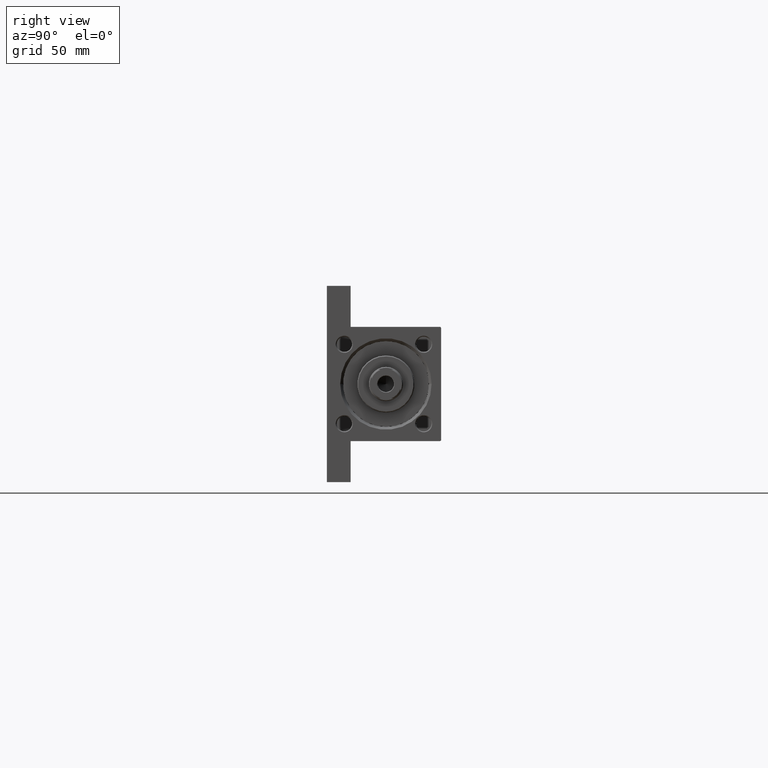
[diagram: clean part render]
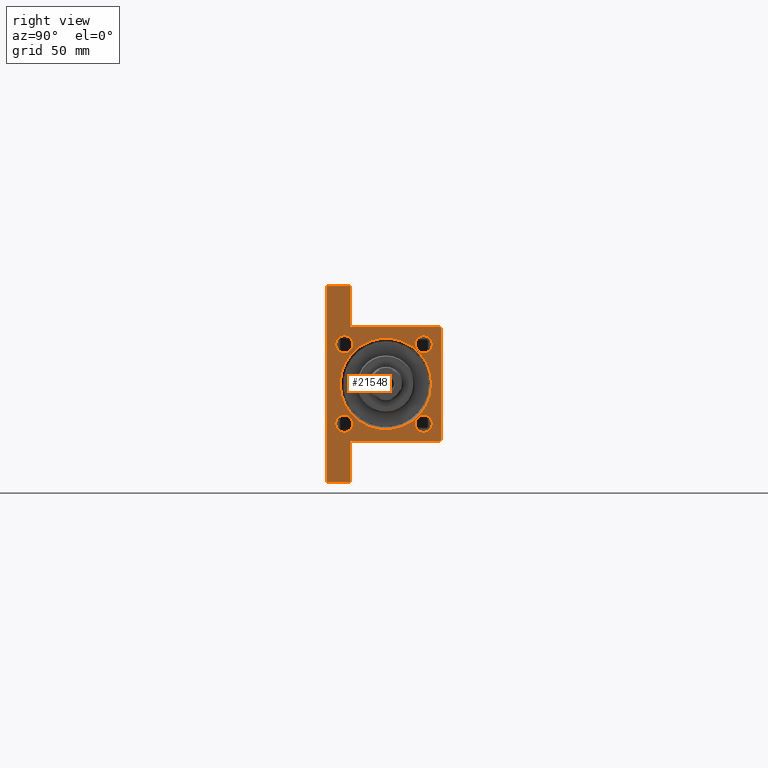
[diagram: same view with one face highlighted and labeled with its STEP entity id]
A machine part, right view. The second image highlights one B-rep face of the part: STEP entity #21548.
In plain terms, the highlighted planar face has unit normal (-1, 0, -0).
Its self-contained STEP definition (entity closure, byte-faithful):
#75 = EDGE_LOOP ( 'NONE', ( #953, #18362 ) ) ;
#223 = EDGE_CURVE ( 'NONE', #21529, #13466, #15725, .T. ) ;
#333 = CIRCLE ( 'NONE', #45209, 23.99999999999999645 ) ;
#454 = CARTESIAN_POINT ( 'NONE',  ( 327.9999999999999432, -51.50000000000002842, -29.99999999999999645 ) ) ;
#515 = FACE_OUTER_BOUND ( 'NONE', #5022, .T. ) ;
#526 = DIRECTION ( 'NONE',  ( 0.000000000000000000, 0.000000000000000000, 1.000000000000000000 ) ) ;
#953 = ORIENTED_EDGE ( 'NONE', *, *, #33337, .T. ) ;
#1099 = AXIS2_PLACEMENT_3D ( 'NONE', #11330, #4176, #3933 ) ;
#1612 = CARTESIAN_POINT ( 'NONE',  ( 327.9999999999999432, -51.50000000000002842, -17.49999999999999645 ) ) ;
#1688 = ORIENTED_EDGE ( 'NONE', *, *, #18664, .T. ) ;
#1730 = EDGE_CURVE ( 'NONE', #23710, #16161, #333, .T. ) ;
#1735 = CARTESIAN_POINT ( 'NONE',  ( 327.9999999999999432, 29.50000000000002487, 30.00000000000000000 ) ) ;
#1999 = VECTOR ( 'NONE', #32997, 1000.000000000000000 ) ;
#2104 = CARTESIAN_POINT ( 'NONE',  ( 327.9999999999999432, -30.00000000000000000, 29.50000000000001776 ) ) ;
#2132 = VERTEX_POINT ( 'NONE', #21603 ) ;
#2498 = VERTEX_POINT ( 'NONE', #1612 ) ;
#2574 = VERTEX_POINT ( 'NONE', #44727 ) ;
#3003 = FACE_BOUND ( 'NONE', #33575, .T. ) ;
#3026 = DIRECTION ( 'NONE',  ( 0.000000000000000000, 0.000000000000000000, 1.000000000000000000 ) ) ;
#3253 = CARTESIAN_POINT ( 'NONE',  ( 327.9999999999999432, -20.85000000000000142, -20.85000000000000142 ) ) ;
#3603 = AXIS2_PLACEMENT_3D ( 'NONE', #14236, #29283, #22608 ) ;
#3933 = DIRECTION ( 'NONE',  ( 0.000000000000000000, 0.000000000000000000, 1.000000000000000000 ) ) ;
#4041 = CARTESIAN_POINT ( 'NONE',  ( 327.9999999999999432, -30.00000000000000000, -17.49999999999998224 ) ) ;
#4074 = CIRCLE ( 'NONE', #33188, 4.500000000000031974 ) ;
#4137 = LINE ( 'NONE', #30509, #15869 ) ;
#4176 = DIRECTION ( 'NONE',  ( -1.000000000000000000, 0.000000000000000000, -0.000000000000000000 ) ) ;
#4737 = LINE ( 'NONE', #38281, #39531 ) ;
#4822 = VECTOR ( 'NONE', #41327, 1000.000000000000000 ) ;
#5022 = EDGE_LOOP ( 'NONE', ( #33754, #25391, #34948, #39122, #43102, #16293, #14489, #31527, #6153, #43975 ) ) ;
#5418 = EDGE_CURVE ( 'NONE', #2574, #12508, #47270, .T. ) ;
#6153 = ORIENTED_EDGE ( 'NONE', *, *, #48739, .F. ) ;
#6832 = VECTOR ( 'NONE', #26269, 1000.000000000000000 ) ;
#7761 = LINE ( 'NONE', #22799, #4822 ) ;
#8220 = EDGE_LOOP ( 'NONE', ( #21623, #31787 ) ) ;
#8811 = DIRECTION ( 'NONE',  ( 0.000000000000000000, -1.000000000000000000, -1.156482317317871478E-16 ) ) ;
#8961 = EDGE_CURVE ( 'NONE', #24069, #2132, #24076, .T. ) ;
#9028 = CARTESIAN_POINT ( 'NONE',  ( 327.9999999999999432, 30.00000000000000000, 29.50000000000000000 ) ) ;
#9249 = DIRECTION ( 'NONE',  ( 0.000000000000000000, 0.000000000000000000, 1.000000000000000000 ) ) ;
#9551 = CIRCLE ( 'NONE', #23674, 4.500000000000031974 ) ;
#9695 = EDGE_CURVE ( 'NONE', #27887, #40385, #4737, .T. ) ;
#10214 = EDGE_CURVE ( 'NONE', #2498, #21919, #4137, .T. ) ;
#10635 = PLANE ( 'NONE',  #31273 ) ;
#10879 = DIRECTION ( 'NONE',  ( -1.000000000000000000, 0.000000000000000000, -0.000000000000000000 ) ) ;
#10912 = ORIENTED_EDGE ( 'NONE', *, *, #8961, .T. ) ;
#11158 = AXIS2_PLACEMENT_3D ( 'NONE', #35556, #23474, #35311 ) ;
#11330 = CARTESIAN_POINT ( 'NONE',  ( 327.9999999999999432, -20.84999999999999432, 20.85000000000000142 ) ) ;
#12508 = VERTEX_POINT ( 'NONE', #30417 ) ;
#12869 = AXIS2_PLACEMENT_3D ( 'NONE', #3253, #33812, #30107 ) ;
#12918 = DIRECTION ( 'NONE',  ( -1.000000000000000000, 0.000000000000000000, -0.000000000000000000 ) ) ;
#12929 = CARTESIAN_POINT ( 'NONE',  ( 327.9999999999999432, 0.000000000000000000, 1.000000000000007772 ) ) ;
#13383 = AXIS2_PLACEMENT_3D ( 'NONE', #18429, #25838, #22129 ) ;
#13466 = VERTEX_POINT ( 'NONE', #22668 ) ;
#14000 = VERTEX_POINT ( 'NONE', #24807 ) ;
#14236 = CARTESIAN_POINT ( 'NONE',  ( 327.9999999999999432, 20.84999999999999787, 20.85000000000000142 ) ) ;
#14489 = ORIENTED_EDGE ( 'NONE', *, *, #10214, .T. ) ;
#14785 = CIRCLE ( 'NONE', #36065, 4.500000000000031974 ) ;
#15725 = CIRCLE ( 'NONE', #13383, 4.500000000000031974 ) ;
#15869 = VECTOR ( 'NONE', #37442, 1000.000000000000000 ) ;
#16161 = VERTEX_POINT ( 'NONE', #45104 ) ;
#16293 = ORIENTED_EDGE ( 'NONE', *, *, #42053, .T. ) ;
#16341 = CARTESIAN_POINT ( 'NONE',  ( 327.9999999999999432, 0.000000000000000000, -22.99999999999998934 ) ) ;
#16848 = VECTOR ( 'NONE', #48234, 1000.000000000000000 ) ;
#17319 = DIRECTION ( 'NONE',  ( -1.000000000000000000, 0.000000000000000000, -0.000000000000000000 ) ) ;
#17693 = VERTEX_POINT ( 'NONE', #34383 ) ;
#17821 = CARTESIAN_POINT ( 'NONE',  ( 327.9999999999999432, 51.49999999999995737, -17.49999999999999645 ) ) ;
#17891 = LINE ( 'NONE', #29965, #6832 ) ;
#18013 = FACE_BOUND ( 'NONE', #8220, .T. ) ;
#18123 = LINE ( 'NONE', #36173, #16848 ) ;
#18362 = ORIENTED_EDGE ( 'NONE', *, *, #45665, .T. ) ;
#18429 = CARTESIAN_POINT ( 'NONE',  ( 327.9999999999999432, 20.84999999999999787, -20.85000000000000142 ) ) ;
#18664 = EDGE_CURVE ( 'NONE', #16161, #23710, #20237, .T. ) ;
#18803 = DIRECTION ( 'NONE',  ( -1.000000000000000000, 0.000000000000000000, -0.000000000000000000 ) ) ;
#19236 = DIRECTION ( 'NONE',  ( -1.000000000000000000, 0.000000000000000000, -0.000000000000000000 ) ) ;
#19376 = ORIENTED_EDGE ( 'NONE', *, *, #23840, .T. ) ;
#20040 = VERTEX_POINT ( 'NONE', #28545 ) ;
#20237 = CIRCLE ( 'NONE', #36803, 23.99999999999999645 ) ;
#20368 = CARTESIAN_POINT ( 'NONE',  ( 327.9999999999999432, -30.00000000000000000, 29.50000000000001776 ) ) ;
#20388 = CARTESIAN_POINT ( 'NONE',  ( 327.9999999999999432, 30.00000000000000000, 30.00000000000000000 ) ) ;
#21183 = LINE ( 'NONE', #1735, #24144 ) ;
#21330 = EDGE_CURVE ( 'NONE', #31287, #21919, #17891, .T. ) ;
#21360 = CARTESIAN_POINT ( 'NONE',  ( 327.9999999999999432, 29.99999999999995381, -17.49999999999999645 ) ) ;
#21529 = VERTEX_POINT ( 'NONE', #36784 ) ;
#21548 = ADVANCED_FACE ( 'NONE', ( #28881, #39525, #3003, #18013, #33075, #515 ), #10635, .F. ) ;
#21603 = CARTESIAN_POINT ( 'NONE',  ( 327.9999999999999432, 20.84999999999999787, 16.34999999999996945 ) ) ;
#21623 = ORIENTED_EDGE ( 'NONE', *, *, #31317, .T. ) ;
#21781 = EDGE_CURVE ( 'NONE', #27887, #2574, #21183, .T. ) ;
#21919 = VERTEX_POINT ( 'NONE', #454 ) ;
#22129 = DIRECTION ( 'NONE',  ( 0.000000000000000000, 0.000000000000000000, 1.000000000000000000 ) ) ;
#22453 = CARTESIAN_POINT ( 'NONE',  ( 327.9999999999999432, 0.000000000000000000, 0.000000000000000000 ) ) ;
#22608 = DIRECTION ( 'NONE',  ( 0.000000000000000000, 0.000000000000000000, 1.000000000000000000 ) ) ;
#22668 = CARTESIAN_POINT ( 'NONE',  ( 327.9999999999999432, 20.84999999999999787, -25.35000000000003340 ) ) ;
#22799 = CARTESIAN_POINT ( 'NONE',  ( 327.9999999999999432, -30.00000000000000000, 29.99999999999999289 ) ) ;
#22975 = DIRECTION ( 'NONE',  ( 0.000000000000000000, 0.000000000000000000, -1.000000000000000000 ) ) ;
#23076 = VECTOR ( 'NONE', #30093, 1000.000000000000000 ) ;
#23474 = DIRECTION ( 'NONE',  ( -1.000000000000000000, 0.000000000000000000, -0.000000000000000000 ) ) ;
#23583 = ORIENTED_EDGE ( 'NONE', *, *, #37093, .T. ) ;
#23674 = AXIS2_PLACEMENT_3D ( 'NONE', #40296, #12918, #24260 ) ;
#23710 = VERTEX_POINT ( 'NONE', #16341 ) ;
#23840 = EDGE_CURVE ( 'NONE', #2132, #24069, #14785, .T. ) ;
#23928 = CARTESIAN_POINT ( 'NONE',  ( 327.9999999999999432, 20.84999999999999787, 25.35000000000003340 ) ) ;
#24069 = VERTEX_POINT ( 'NONE', #23928 ) ;
#24076 = CIRCLE ( 'NONE', #3603, 4.500000000000031974 ) ;
#24144 = VECTOR ( 'NONE', #32065, 1000.000000000000000 ) ;
#24260 = DIRECTION ( 'NONE',  ( 0.000000000000000000, 0.000000000000000000, 1.000000000000000000 ) ) ;
#24807 = CARTESIAN_POINT ( 'NONE',  ( 327.9999999999999432, -20.85000000000000142, -16.34999999999996945 ) ) ;
#25391 = ORIENTED_EDGE ( 'NONE', *, *, #21781, .T. ) ;
#25838 = DIRECTION ( 'NONE',  ( -1.000000000000000000, 0.000000000000000000, -0.000000000000000000 ) ) ;
#26269 = DIRECTION ( 'NONE',  ( 0.000000000000000000, -1.000000000000000000, -1.156482317317871478E-16 ) ) ;
#26361 = ORIENTED_EDGE ( 'NONE', *, *, #41052, .T. ) ;
#26427 = EDGE_CURVE ( 'NONE', #36647, #40385, #40539, .T. ) ;
#27887 = VERTEX_POINT ( 'NONE', #9028 ) ;
#28082 = VERTEX_POINT ( 'NONE', #4041 ) ;
#28299 = EDGE_LOOP ( 'NONE', ( #46749, #1688 ) ) ;
#28545 = CARTESIAN_POINT ( 'NONE',  ( 327.9999999999999432, -20.84999999999999432, 16.34999999999996945 ) ) ;
#28881 = FACE_BOUND ( 'NONE', #32670, .T. ) ;
#29283 = DIRECTION ( 'NONE',  ( -1.000000000000000000, 0.000000000000000000, -0.000000000000000000 ) ) ;
#29675 = CARTESIAN_POINT ( 'NONE',  ( 327.9999999999999432, 0.000000000000000000, 1.000000000000007772 ) ) ;
#29965 = CARTESIAN_POINT ( 'NONE',  ( 327.9999999999999432, 30.00000000000000000, -29.99999999999999289 ) ) ;
#30093 = DIRECTION ( 'NONE',  ( -0.000000000000000000, -0.7071067811865671127, -0.7071067811865279218 ) ) ;
#30107 = DIRECTION ( 'NONE',  ( 0.000000000000000000, 0.000000000000000000, 1.000000000000000000 ) ) ;
#30417 = CARTESIAN_POINT ( 'NONE',  ( 327.9999999999999432, -29.50000000000000000, 29.99999999999999289 ) ) ;
#30509 = CARTESIAN_POINT ( 'NONE',  ( 327.9999999999999432, -51.50000000000002842, -17.49999999999999645 ) ) ;
#31273 = AXIS2_PLACEMENT_3D ( 'NONE', #22453, #10879, #37511 ) ;
#31287 = VERTEX_POINT ( 'NONE', #40062 ) ;
#31317 = EDGE_CURVE ( 'NONE', #13466, #21529, #9551, .T. ) ;
#31527 = ORIENTED_EDGE ( 'NONE', *, *, #21330, .F. ) ;
#31787 = ORIENTED_EDGE ( 'NONE', *, *, #223, .T. ) ;
#32065 = DIRECTION ( 'NONE',  ( 0.000000000000000000, -0.7071067811865279218, 0.7071067811865671127 ) ) ;
#32119 = EDGE_CURVE ( 'NONE', #32981, #28082, #7761, .T. ) ;
#32151 = CARTESIAN_POINT ( 'NONE',  ( 327.9999999999999432, 20.84999999999999787, 20.85000000000000142 ) ) ;
#32284 = CARTESIAN_POINT ( 'NONE',  ( 327.9999999999999432, 51.49999999999995737, -17.49999999999999645 ) ) ;
#32311 = CARTESIAN_POINT ( 'NONE',  ( 327.9999999999999432, -20.85000000000000142, -25.35000000000003340 ) ) ;
#32670 = EDGE_LOOP ( 'NONE', ( #19376, #10912 ) ) ;
#32981 = VERTEX_POINT ( 'NONE', #20368 ) ;
#32997 = DIRECTION ( 'NONE',  ( 0.000000000000000000, 0.000000000000000000, -1.000000000000000000 ) ) ;
#33075 = FACE_BOUND ( 'NONE', #28299, .T. ) ;
#33188 = AXIS2_PLACEMENT_3D ( 'NONE', #45400, #19236, #526 ) ;
#33337 = EDGE_CURVE ( 'NONE', #20040, #17693, #46608, .T. ) ;
#33575 = EDGE_LOOP ( 'NONE', ( #26361, #23583 ) ) ;
#33754 = ORIENTED_EDGE ( 'NONE', *, *, #9695, .F. ) ;
#33812 = DIRECTION ( 'NONE',  ( -1.000000000000000000, 0.000000000000000000, -0.000000000000000000 ) ) ;
#34383 = CARTESIAN_POINT ( 'NONE',  ( 327.9999999999999432, -20.84999999999999432, 25.35000000000003340 ) ) ;
#34948 = ORIENTED_EDGE ( 'NONE', *, *, #5418, .T. ) ;
#35311 = DIRECTION ( 'NONE',  ( 0.000000000000000000, 0.000000000000000000, 1.000000000000000000 ) ) ;
#35556 = CARTESIAN_POINT ( 'NONE',  ( 327.9999999999999432, -20.84999999999999432, 20.85000000000000142 ) ) ;
#36065 = AXIS2_PLACEMENT_3D ( 'NONE', #32151, #17319, #3026 ) ;
#36173 = CARTESIAN_POINT ( 'NONE',  ( 327.9999999999999432, -51.50000000000002842, -17.49999999999999645 ) ) ;
#36647 = VERTEX_POINT ( 'NONE', #39905 ) ;
#36705 = LINE ( 'NONE', #32284, #1999 ) ;
#36784 = CARTESIAN_POINT ( 'NONE',  ( 327.9999999999999432, 20.84999999999999787, -16.34999999999996945 ) ) ;
#36803 = AXIS2_PLACEMENT_3D ( 'NONE', #29675, #18803, #41032 ) ;
#37093 = EDGE_CURVE ( 'NONE', #14000, #43753, #4074, .T. ) ;
#37282 = CIRCLE ( 'NONE', #12869, 4.500000000000031974 ) ;
#37442 = DIRECTION ( 'NONE',  ( 0.000000000000000000, 0.000000000000000000, -1.000000000000000000 ) ) ;
#37511 = DIRECTION ( 'NONE',  ( -0.000000000000000000, 0.000000000000000000, 1.000000000000000000 ) ) ;
#38281 = CARTESIAN_POINT ( 'NONE',  ( 327.9999999999999432, 30.00000000000000000, 30.00000000000000000 ) ) ;
#39122 = ORIENTED_EDGE ( 'NONE', *, *, #39806, .T. ) ;
#39525 = FACE_BOUND ( 'NONE', #75, .T. ) ;
#39531 = VECTOR ( 'NONE', #22975, 1000.000000000000000 ) ;
#39806 = EDGE_CURVE ( 'NONE', #12508, #32981, #44902, .T. ) ;
#39905 = CARTESIAN_POINT ( 'NONE',  ( 327.9999999999999432, 51.49999999999995737, -17.49999999999999645 ) ) ;
#40062 = CARTESIAN_POINT ( 'NONE',  ( 327.9999999999999432, 51.49999999999995737, -29.99999999999999645 ) ) ;
#40085 = VECTOR ( 'NONE', #47922, 1000.000000000000000 ) ;
#40296 = CARTESIAN_POINT ( 'NONE',  ( 327.9999999999999432, 20.84999999999999787, -20.85000000000000142 ) ) ;
#40385 = VERTEX_POINT ( 'NONE', #21360 ) ;
#40438 = VECTOR ( 'NONE', #8811, 1000.000000000000000 ) ;
#40539 = LINE ( 'NONE', #17821, #40085 ) ;
#41032 = DIRECTION ( 'NONE',  ( 0.000000000000000000, 0.000000000000000000, 1.000000000000000000 ) ) ;
#41052 = EDGE_CURVE ( 'NONE', #43753, #14000, #37282, .T. ) ;
#41327 = DIRECTION ( 'NONE',  ( 0.000000000000000000, 0.000000000000000000, -1.000000000000000000 ) ) ;
#42053 = EDGE_CURVE ( 'NONE', #28082, #2498, #18123, .T. ) ;
#43032 = DIRECTION ( 'NONE',  ( -1.000000000000000000, 0.000000000000000000, -0.000000000000000000 ) ) ;
#43102 = ORIENTED_EDGE ( 'NONE', *, *, #32119, .T. ) ;
#43753 = VERTEX_POINT ( 'NONE', #32311 ) ;
#43975 = ORIENTED_EDGE ( 'NONE', *, *, #26427, .T. ) ;
#44727 = CARTESIAN_POINT ( 'NONE',  ( 327.9999999999999432, 29.50000000000002487, 30.00000000000000000 ) ) ;
#44902 = LINE ( 'NONE', #2104, #23076 ) ;
#45104 = CARTESIAN_POINT ( 'NONE',  ( 327.9999999999999432, 2.939152317953647500E-15, 25.00000000000000355 ) ) ;
#45209 = AXIS2_PLACEMENT_3D ( 'NONE', #12929, #43032, #9249 ) ;
#45400 = CARTESIAN_POINT ( 'NONE',  ( 327.9999999999999432, -20.85000000000000142, -20.85000000000000142 ) ) ;
#45665 = EDGE_CURVE ( 'NONE', #17693, #20040, #48343, .T. ) ;
#46608 = CIRCLE ( 'NONE', #11158, 4.500000000000031974 ) ;
#46749 = ORIENTED_EDGE ( 'NONE', *, *, #1730, .T. ) ;
#47270 = LINE ( 'NONE', #20388, #40438 ) ;
#47922 = DIRECTION ( 'NONE',  ( 0.000000000000000000, -1.000000000000000000, 0.000000000000000000 ) ) ;
#48234 = DIRECTION ( 'NONE',  ( -0.000000000000000000, -1.000000000000000000, -0.000000000000000000 ) ) ;
#48343 = CIRCLE ( 'NONE', #1099, 4.500000000000031974 ) ;
#48739 = EDGE_CURVE ( 'NONE', #36647, #31287, #36705, .T. ) ;